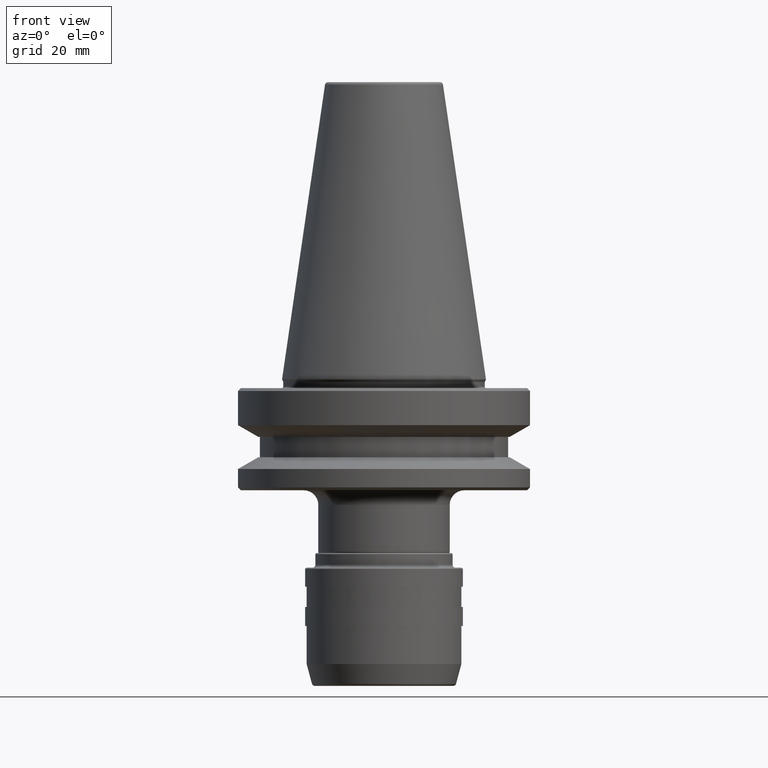
[diagram: clean part render]
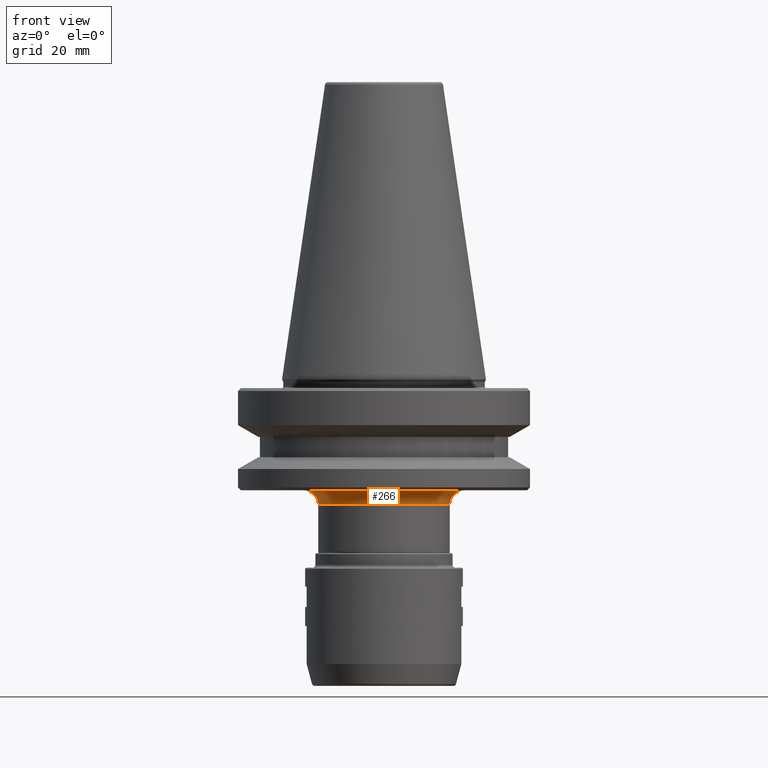
[diagram: same view with one face highlighted and labeled with its STEP entity id]
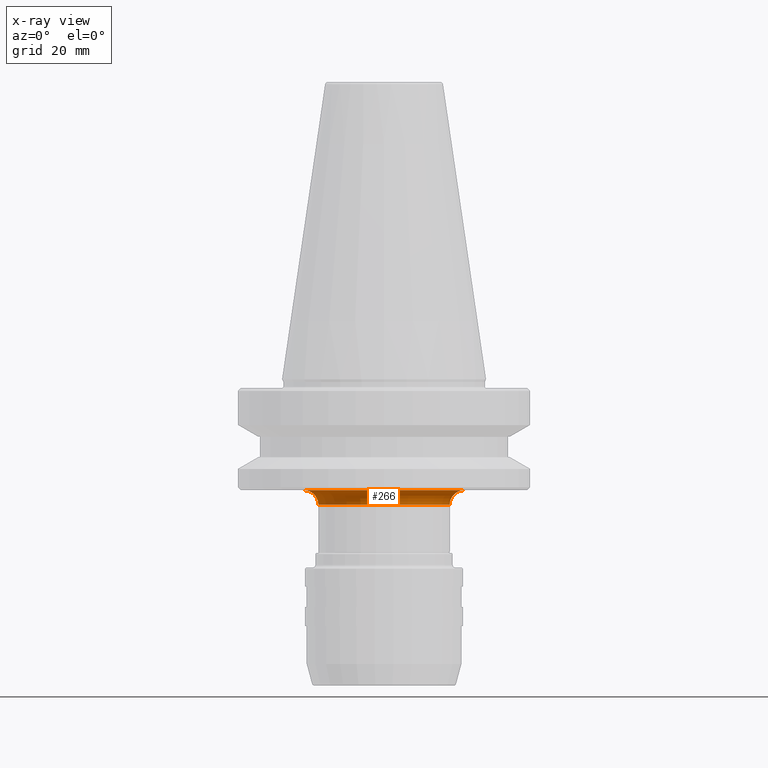
[diagram: x-ray of the same camera — body ghosted, the highlighted face saturated]
A machine part, front view. The second image highlights one B-rep face of the part: STEP entity #266.
The next image is the same camera in x-ray: the body ghosted, the highlighted face saturated — about 0% of this face is hidden behind the body in this view.
In plain terms, the highlighted toroidal blend (fillet) surface has major radius 27.5 mm and minor (blend) radius 5 mm.
Its self-contained STEP definition (entity closure, byte-faithful):
#8 = VERTEX_POINT ( 'NONE', #1035 ) ;
#37 = EDGE_CURVE ( 'NONE', #8, #216, #126, .T. ) ;
#42 = CARTESIAN_POINT ( 'NONE',  ( 27.49999999999852600, 0.0000000000000000000, -43.00000000000192600 ) ) ;
#84 = CARTESIAN_POINT ( 'NONE',  ( 0.0000000000000000000, 0.0000000000000000000, -43.00000000000192600 ) ) ;
#126 = CIRCLE ( 'NONE', #1357, 5.000000000000115500 ) ;
#145 = CARTESIAN_POINT ( 'NONE',  ( -22.49999999999863200, 2.755455298081377100E-015, -43.00000000000192600 ) ) ;
#149 = VERTEX_POINT ( 'NONE', #145 ) ;
#169 = DIRECTION ( 'NONE',  ( -0.0000000000000000000, -0.0000000000000000000, 1.000000000000000000 ) ) ;
#186 = DIRECTION ( 'NONE',  ( 1.000000000000000000, 0.0000000000000000000, 0.0000000000000000000 ) ) ;
#210 = VERTEX_POINT ( 'NONE', #677 ) ;
#216 = VERTEX_POINT ( 'NONE', #1176 ) ;
#222 = DIRECTION ( 'NONE',  ( 1.224646799147353200E-016, 1.000000000000000000, 0.0000000000000000000 ) ) ;
#265 = DIRECTION ( 'NONE',  ( -0.0000000000000000000, -0.0000000000000000000, 1.000000000000000000 ) ) ;
#266 = ADVANCED_FACE ( 'NONE', ( #1022 ), #750, .F. ) ;
#385 = AXIS2_PLACEMENT_3D ( 'NONE', #84, #265, #186 ) ;
#460 = DIRECTION ( 'NONE',  ( 1.000000000000000000, 0.0000000000000000000, 0.0000000000000000000 ) ) ;
#502 = CIRCLE ( 'NONE', #1027, 5.000000000000115500 ) ;
#669 = EDGE_CURVE ( 'NONE', #149, #216, #1012, .T. ) ;
#677 = CARTESIAN_POINT ( 'NONE',  ( -27.49999999999852600, 3.367778697655041400E-015, -38.00000000000169800 ) ) ;
#694 = CARTESIAN_POINT ( 'NONE',  ( 0.0000000000000000000, 0.0000000000000000000, -43.00000000000192600 ) ) ;
#750 = TOROIDAL_SURFACE ( 'NONE', #1523, 27.49999999999852600, 5.000000000000115500 ) ;
#846 = CIRCLE ( 'NONE', #1606, 27.49999999999852600 ) ;
#849 = ORIENTED_EDGE ( 'NONE', *, *, #997, .T. ) ;
#956 = EDGE_CURVE ( 'NONE', #210, #8, #846, .T. ) ;
#983 = CARTESIAN_POINT ( 'NONE',  ( -27.49999999999852600, 3.367778697655041100E-015, -43.00000000000192600 ) ) ;
#997 = EDGE_CURVE ( 'NONE', #210, #149, #502, .T. ) ;
#1012 = CIRCLE ( 'NONE', #385, 22.49999999999863200 ) ;
#1015 = EDGE_LOOP ( 'NONE', ( #1589, #849, #1512, #1111 ) ) ;
#1022 = FACE_OUTER_BOUND ( 'NONE', #1015, .T. ) ;
#1027 = AXIS2_PLACEMENT_3D ( 'NONE', #983, #222, #1103 ) ;
#1035 = CARTESIAN_POINT ( 'NONE',  ( 27.49999999999852600, 0.0000000000000000000, -38.00000000000169800 ) ) ;
#1056 = DIRECTION ( 'NONE',  ( 1.000000000000000000, 0.0000000000000000000, 0.0000000000000000000 ) ) ;
#1099 = DIRECTION ( 'NONE',  ( 0.0000000000000000000, -1.000000000000000000, 0.0000000000000000000 ) ) ;
#1103 = DIRECTION ( 'NONE',  ( -1.000000000000000000, 1.224646799147353700E-016, 0.0000000000000000000 ) ) ;
#1111 = ORIENTED_EDGE ( 'NONE', *, *, #37, .F. ) ;
#1131 = DIRECTION ( 'NONE',  ( -0.0000000000000000000, -0.0000000000000000000, 1.000000000000000000 ) ) ;
#1150 = CARTESIAN_POINT ( 'NONE',  ( 0.0000000000000000000, 0.0000000000000000000, -38.00000000000159200 ) ) ;
#1176 = CARTESIAN_POINT ( 'NONE',  ( 22.49999999999863200, 0.0000000000000000000, -43.00000000000192600 ) ) ;
#1357 = AXIS2_PLACEMENT_3D ( 'NONE', #42, #1099, #1470 ) ;
#1470 = DIRECTION ( 'NONE',  ( 0.0000000000000000000, 0.0000000000000000000, -1.000000000000000000 ) ) ;
#1512 = ORIENTED_EDGE ( 'NONE', *, *, #669, .T. ) ;
#1523 = AXIS2_PLACEMENT_3D ( 'NONE', #694, #169, #460 ) ;
#1589 = ORIENTED_EDGE ( 'NONE', *, *, #956, .F. ) ;
#1606 = AXIS2_PLACEMENT_3D ( 'NONE', #1150, #1131, #1056 ) ;